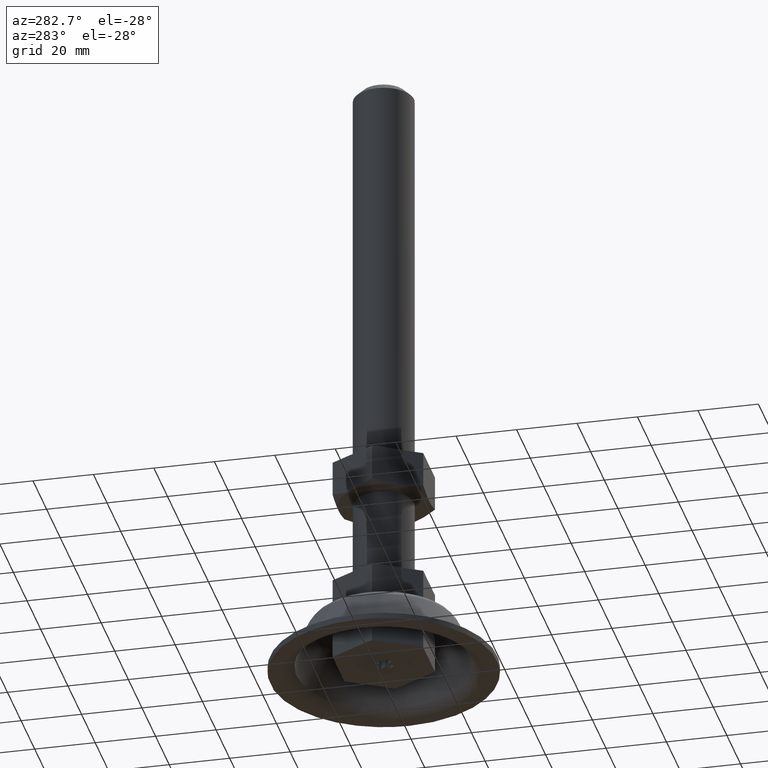
[diagram: clean part render]
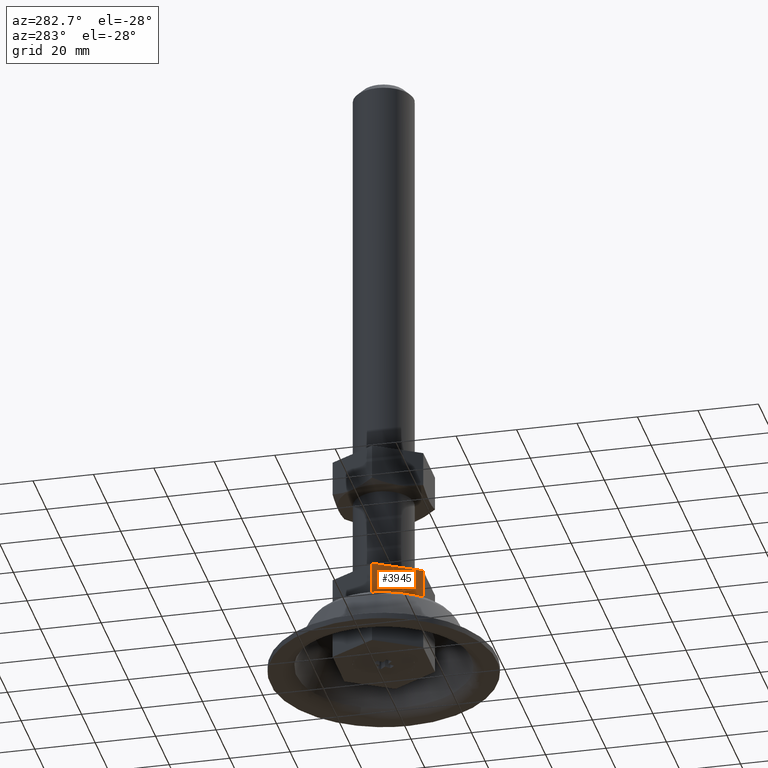
[diagram: same view with one face highlighted and labeled with its STEP entity id]
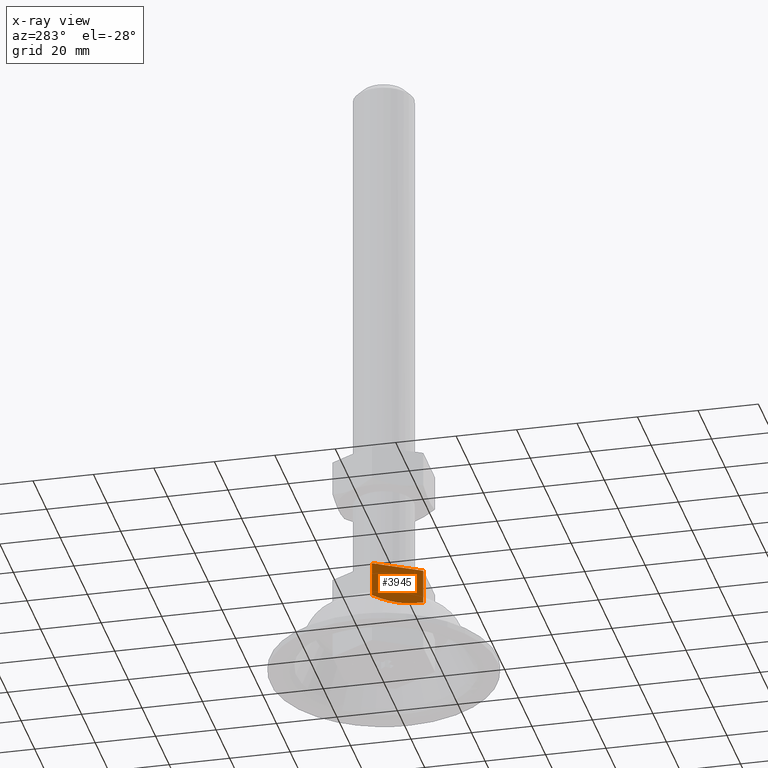
[diagram: x-ray of the same camera — body ghosted, the highlighted face saturated]
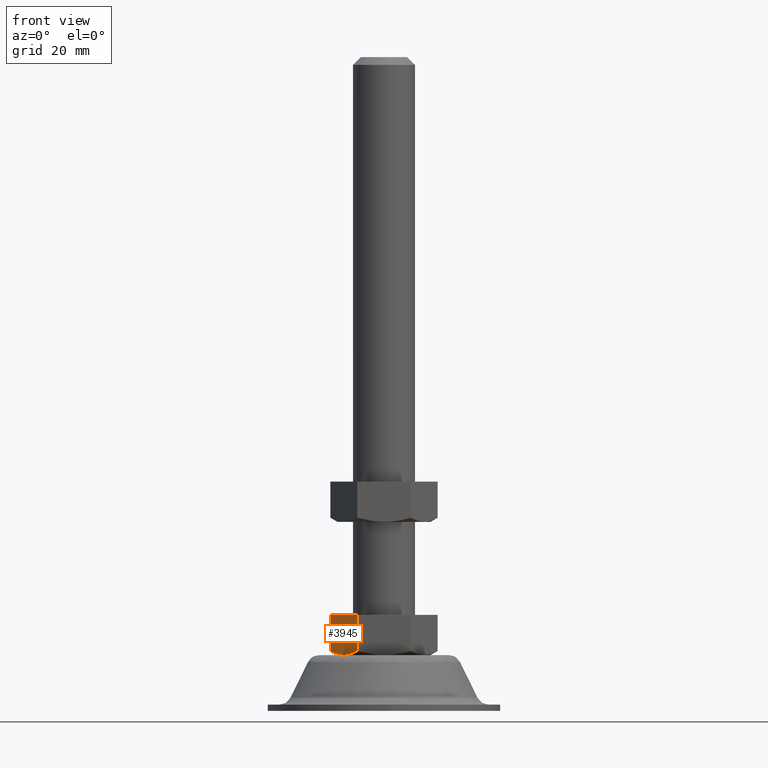
[diagram: same view with one face highlighted and labeled with its STEP entity id]
A machine part, auxiliary view. The second image highlights one B-rep face of the part: STEP entity #3945.
The next image is the same camera in x-ray: the body ghosted, the highlighted face saturated — about 0% of this face is hidden behind the body in this view.
A second angle (front view) of the same face is appended — the face is thin or edge-on in the first view.
In plain terms, the highlighted face is a freeform B-spline surface patch.
Its self-contained STEP definition (entity closure, byte-faithful):
#2566=CARTESIAN_POINT('',(-8.639746000000001,-15.0,19.345671394023348));
#2567=VERTEX_POINT('',#2566);
#2590=CARTESIAN_POINT('',(-17.300000000000001,-2.991264E-016,19.339745951230899));
#2591=VERTEX_POINT('',#2590);
#2592=CARTESIAN_POINT('',(-17.300000000000001,-2.991264E-016,19.339745951230899));
#2593=CARTESIAN_POINT('',(-16.592941722767922,-1.224660865429841,18.931525664537769));
#2594=CARTESIAN_POINT('',(-15.880722203566380,-2.458261264219860,18.595166574800000));
#2595=CARTESIAN_POINT('',(-14.801235094892700,-4.327987790728787,18.245981053792200));
#2596=CARTESIAN_POINT('',(-14.439541958482780,-4.954458682477326,18.155540189446040));
#2597=CARTESIAN_POINT('',(-13.711936844397600,-6.214707713426938,18.033398389028559));
#2598=CARTESIAN_POINT('',(-13.346021212827770,-6.848492181359105,18.001748326998719));
#2599=CARTESIAN_POINT('',(-12.885799685170859,-7.645619253481191,18.001546577077889));
#2600=CARTESIAN_POINT('',(-12.793614645803350,-7.805288426061190,18.003465697697202));
#2601=CARTESIAN_POINT('',(-12.608961067811631,-8.125117806339862,18.011251166375121));
#2602=CARTESIAN_POINT('',(-12.516661840701410,-8.284984757892699,18.017113104138261));
#2603=CARTESIAN_POINT('',(-12.240427566274530,-8.763436558082766,18.040486526452248));
#2604=CARTESIAN_POINT('',(-12.056912984918910,-9.081293138309434,18.063800979005300));
#2605=CARTESIAN_POINT('',(-11.508210259183780,-10.031674141687260,18.155931109065261));
#2606=CARTESIAN_POINT('',(-11.144867414517430,-10.661002411966070,18.246985155436430));
#2607=CARTESIAN_POINT('',(-10.061320491401849,-12.537760743388411,18.598259512653328));
#2608=CARTESIAN_POINT('',(-9.347572270797716,-13.774008930688909,18.936281682498439));
#2609=CARTESIAN_POINT('',(-8.639746000000001,-15.0,19.345671394023348));
#2610=B_SPLINE_CURVE_WITH_KNOTS('',3,(#2592,#2593,#2594,#2595,#2596,#2597,#2598,#2599,#2600,#2601,#2602,#2603,#2604,#2605,#2606,#2607,#2608,#2609),.UNSPECIFIED.,.F.,.U.,(4,2,2,2,2,2,2,2,4),(0.0,0.250000000000001,0.375000000000001,0.500000000000001,0.531250000000001,0.562500000000001,0.625000000000001,0.750000000000001,1.0),.UNSPECIFIED.);
#2611=EDGE_CURVE('',#2591,#2567,#2610,.T.);
#3863=CARTESIAN_POINT('',(-17.300000000000001,0.0,31.0));
#3864=VERTEX_POINT('',#3863);
#3872=CARTESIAN_POINT('',(-8.639746000000001,-15.0,31.0));
#3873=VERTEX_POINT('',#3872);
#3874=CARTESIAN_POINT('',(-8.639746000000001,-15.0,31.0));
#3875=CARTESIAN_POINT('',(-17.300000000000001,0.0,31.0));
#3876=QUASI_UNIFORM_CURVE('',1,(#3874,#3875),.UNSPECIFIED.,.F.,.U.);
#3877=EDGE_CURVE('',#3873,#3864,#3876,.T.);
#3926=CARTESIAN_POINT('',(-17.732579507922260,0.749249689308522,17.352318113032311));
#3927=CARTESIAN_POINT('',(-8.207166104934263,-15.749250359860810,17.352318113032311));
#3928=CARTESIAN_POINT('',(-17.732579507922260,0.749249689308522,31.649270966350741));
#3929=CARTESIAN_POINT('',(-8.207166104934263,-15.749250359860810,31.649270966350741));
#3930=B_SPLINE_SURFACE_WITH_KNOTS('',1,1,((#3926,#3928),(#3927,#3929)),.UNSPECIFIED.,.F.,.F.,.U.,(2,2),(2,2),(0.0,19.050826868413449),(0.0,14.296952853318430),.UNSPECIFIED.);
#3931=CARTESIAN_POINT('',(-17.300000000000001,0.0,31.0));
#3932=CARTESIAN_POINT('',(-17.300000000000001,-2.991264E-016,19.339745951230899));
#3933=QUASI_UNIFORM_CURVE('',1,(#3931,#3932),.UNSPECIFIED.,.F.,.U.);
#3934=EDGE_CURVE('',#3864,#2591,#3933,.T.);
#3935=ORIENTED_EDGE('',*,*,#3934,.T.);
#3936=ORIENTED_EDGE('',*,*,#2611,.T.);
#3937=CARTESIAN_POINT('',(-8.639746000000001,-15.0,31.0));
#3938=CARTESIAN_POINT('',(-8.639746000000001,-15.0,19.345671394023348));
#3939=QUASI_UNIFORM_CURVE('',1,(#3937,#3938),.UNSPECIFIED.,.F.,.U.);
#3940=EDGE_CURVE('',#3873,#2567,#3939,.T.);
#3941=ORIENTED_EDGE('',*,*,#3940,.F.);
#3942=ORIENTED_EDGE('',*,*,#3877,.T.);
#3943=EDGE_LOOP('',(#3935,#3936,#3941,#3942));
#3944=FACE_OUTER_BOUND('',#3943,.T.);
#3945=ADVANCED_FACE('',(#3944),#3930,.T.);